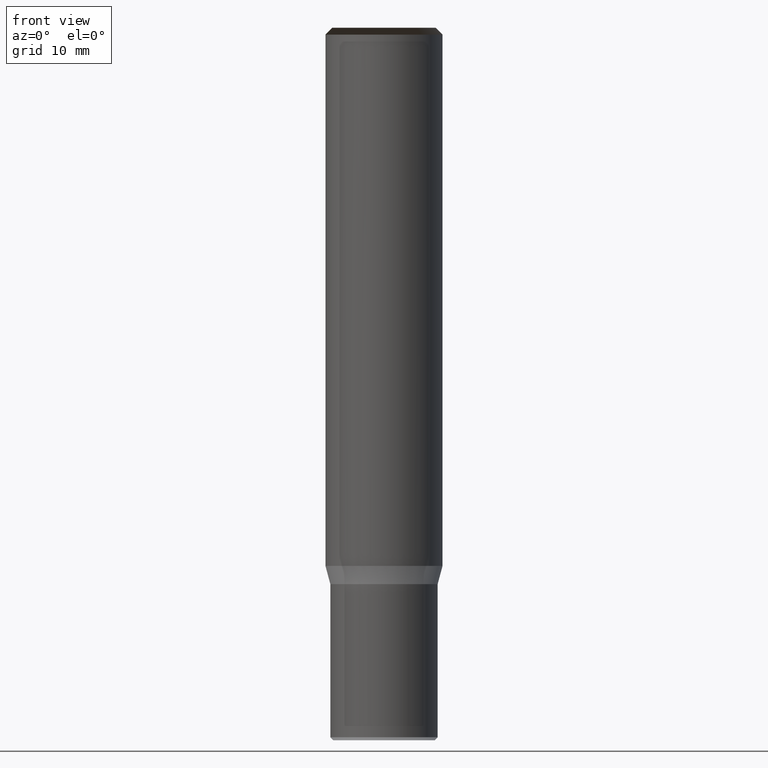
[diagram: clean part render]
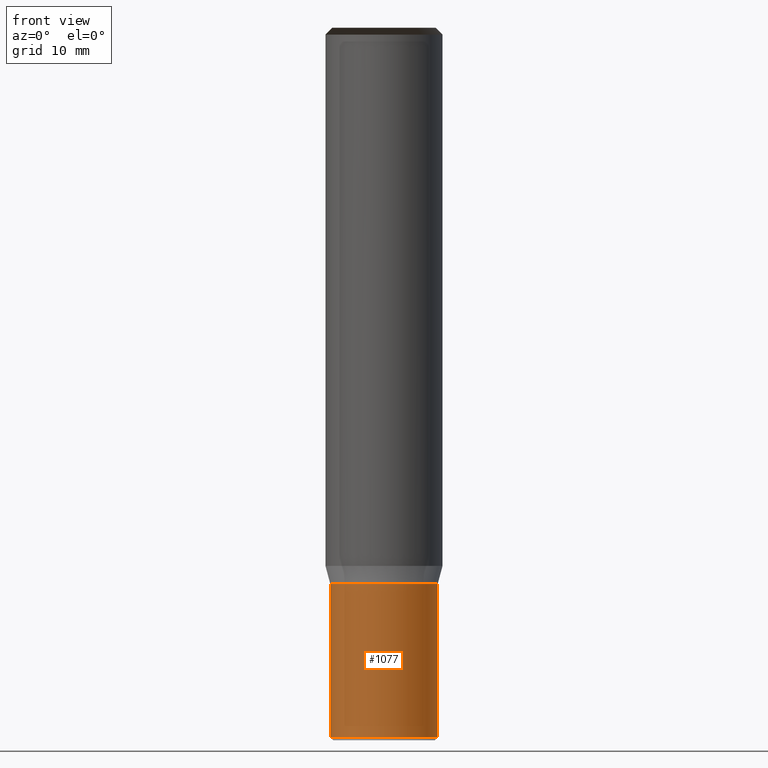
[diagram: same view with one face highlighted and labeled with its STEP entity id]
A machine part, front view. The second image highlights one B-rep face of the part: STEP entity #1077.
In plain terms, the highlighted face is a freeform B-spline surface patch.
Its self-contained STEP definition (entity closure, byte-faithful):
#898=CARTESIAN_POINT('',(5.5,0.0,-17.56601978));
#902=CARTESIAN_POINT('',(-5.5,0.0,-17.56601978));
#903=CARTESIAN_POINT('',(5.5,0.0,-1.86601978));
#907=CARTESIAN_POINT('',(-5.5,0.0,-1.86601978));
#912=CARTESIAN_POINT('',(-5.5,-5.5,-17.56601978));
#913=CARTESIAN_POINT('',(0.0,-5.5,-17.56601978));
#914=CARTESIAN_POINT('',(5.5,-5.5,-17.56601978));
#915=CARTESIAN_POINT('',(-5.5,-5.5,-1.86601978));
#916=CARTESIAN_POINT('',(0.0,-5.5,-1.86601978));
#917=CARTESIAN_POINT('',(5.5,-5.5,-1.86601978));
#1058=(
BOUNDED_SURFACE()
B_SPLINE_SURFACE(1,2,(
(#902,#912,#913,#914,#898),
(#907,#915,#916,#917,#903)
), .UNSPECIFIED.,.F.,.F.,.F.)
B_SPLINE_SURFACE_WITH_KNOTS((2,2),(3,2,3),(
0.0,1.0),(
0.0,0.5,1.0), .UNSPECIFIED.)
GEOMETRIC_REPRESENTATION_ITEM()
RATIONAL_B_SPLINE_SURFACE(((1.0,0.707106781187,1.0,0.707106781187,1.0),
(1.0,0.707106781187,1.0,0.707106781187,1.0)
))
REPRESENTATION_ITEM('')
SURFACE()
);
#1059=(
BOUNDED_CURVE()
B_SPLINE_CURVE(1,(#907,#902),.UNSPECIFIED.,.F.,.F.)
B_SPLINE_CURVE_WITH_KNOTS((2,2),
(0.0,1.0),.UNSPECIFIED.)
CURVE()
GEOMETRIC_REPRESENTATION_ITEM()
RATIONAL_B_SPLINE_CURVE((1.0,1.0))
REPRESENTATION_ITEM('')
);
#1060=(
BOUNDED_CURVE()
B_SPLINE_CURVE(2,(#902,#912,#913,#914,#898),.UNSPECIFIED.,.F.,.F.)
B_SPLINE_CURVE_WITH_KNOTS((3,2,3),
(0.0,0.5,1.0),.UNSPECIFIED.)
CURVE()
GEOMETRIC_REPRESENTATION_ITEM()
RATIONAL_B_SPLINE_CURVE((1.0,0.707106781187,1.0,0.707106781187,1.0))
REPRESENTATION_ITEM('')
);
#1061=(
BOUNDED_CURVE()
B_SPLINE_CURVE(1,(#898,#903),.UNSPECIFIED.,.F.,.F.)
B_SPLINE_CURVE_WITH_KNOTS((2,2),
(0.0,1.0),.UNSPECIFIED.)
CURVE()
GEOMETRIC_REPRESENTATION_ITEM()
RATIONAL_B_SPLINE_CURVE((1.0,1.0))
REPRESENTATION_ITEM('')
);
#1062=(
BOUNDED_CURVE()
B_SPLINE_CURVE(2,(#903,#917,#916,#915,#907),.UNSPECIFIED.,.F.,.F.)
B_SPLINE_CURVE_WITH_KNOTS((3,2,3),
(0.0,0.5,1.0),.UNSPECIFIED.)
CURVE()
GEOMETRIC_REPRESENTATION_ITEM()
RATIONAL_B_SPLINE_CURVE((1.0,0.707106781187,1.0,0.707106781187,1.0))
REPRESENTATION_ITEM('')
);
#1063=VERTEX_POINT('',#898);
#1064=VERTEX_POINT('',#902);
#1065=VERTEX_POINT('',#903);
#1066=VERTEX_POINT('',#907);
#1067=EDGE_CURVE('',#1066,#1064,#1059,.T.);
#1068=EDGE_CURVE('',#1064,#1063,#1060,.T.);
#1069=EDGE_CURVE('',#1063,#1065,#1061,.T.);
#1070=EDGE_CURVE('',#1065,#1066,#1062,.T.);
#1071=ORIENTED_EDGE('',*,*,#1067,.T.);
#1072=ORIENTED_EDGE('',*,*,#1068,.T.);
#1073=ORIENTED_EDGE('',*,*,#1069,.T.);
#1074=ORIENTED_EDGE('',*,*,#1070,.T.);
#1075=EDGE_LOOP('',(#1071,#1072,#1073,#1074));
#1076=FACE_OUTER_BOUND('',#1075,.T.);
#1077=ADVANCED_FACE('',(#1076),#1058,.T.);